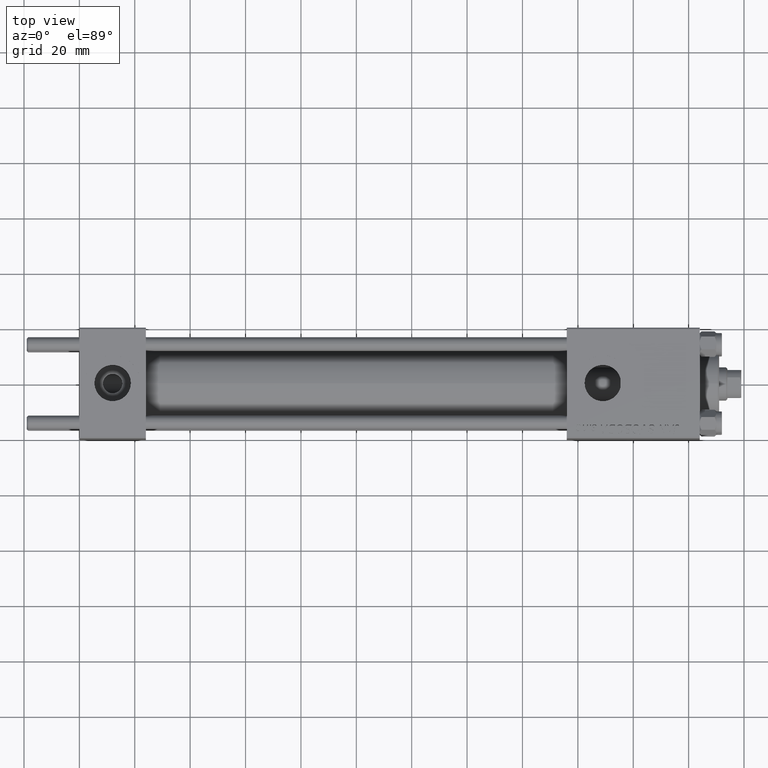
[diagram: clean part render]
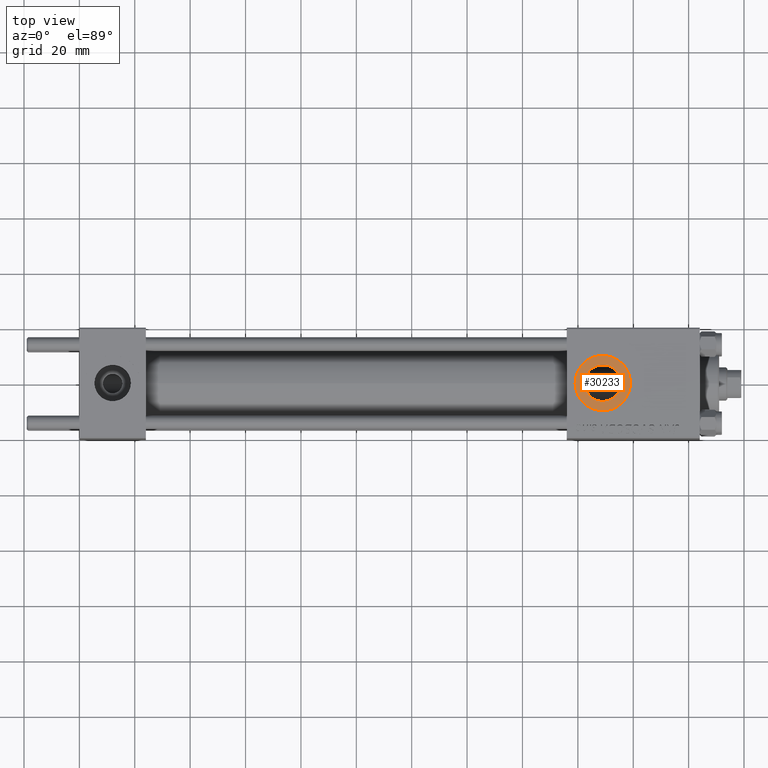
[diagram: same view with one face highlighted and labeled with its STEP entity id]
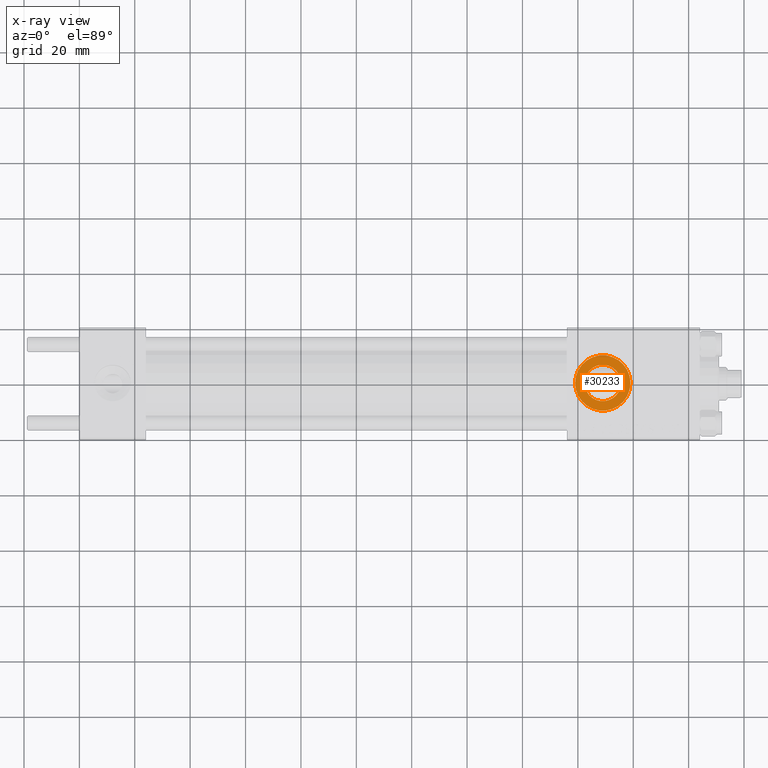
[diagram: x-ray of the same camera — body ghosted, the highlighted face saturated]
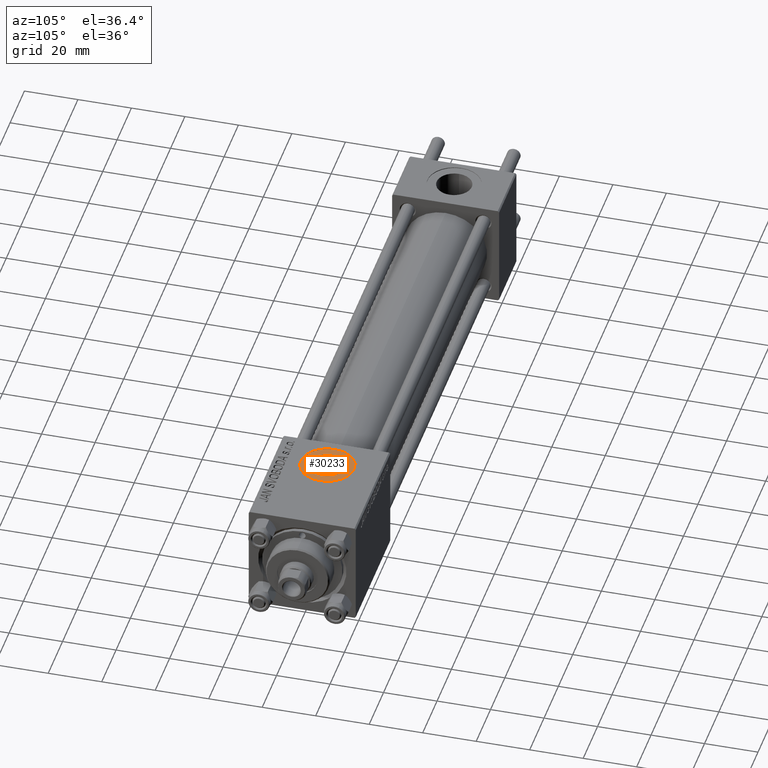
[diagram: same view with one face highlighted and labeled with its STEP entity id]
A machine part, top view. The second image highlights one B-rep face of the part: STEP entity #30233.
The next image is the same camera in x-ray: the body ghosted, the highlighted face saturated — about 0% of this face is hidden behind the body in this view.
A second angle (auxiliary view) of the same face is appended — the face is thin or edge-on in the first view.
In plain terms, the highlighted planar face has unit normal (0, 0, 1).
Its self-contained STEP definition (entity closure, byte-faithful):
#477 = DIRECTION ( 'NONE',  ( -0.000000000000000000, -0.000000000000000000, -1.000000000000000000 ) ) ;
#4116 = VERTEX_POINT ( 'NONE', #8311 ) ;
#6500 = CIRCLE ( 'NONE', #46019, 6.580000000000002736 ) ;
#8161 = CIRCLE ( 'NONE', #37971, 6.580000000000002736 ) ;
#8311 = CARTESIAN_POINT ( 'NONE',  ( 182.4199999999999875, -1.734723475976806897E-15, 19.80000000000000071 ) ) ;
#10859 = ORIENTED_EDGE ( 'NONE', *, *, #46831, .T. ) ;
#12625 = CARTESIAN_POINT ( 'NONE',  ( 189.0000000000000000, -1.734723475976806897E-15, 19.80000000000000071 ) ) ;
#12645 = CARTESIAN_POINT ( 'NONE',  ( 189.0000000000000000, -1.734723475976806897E-15, 19.80000000000000071 ) ) ;
#13983 = EDGE_CURVE ( 'NONE', #20939, #25242, #26460, .T. ) ;
#15894 = DIRECTION ( 'NONE',  ( 1.000000000000000000, 0.000000000000000000, 0.000000000000000000 ) ) ;
#17599 = DIRECTION ( 'NONE',  ( 1.000000000000000000, 0.000000000000000000, 0.000000000000000000 ) ) ;
#18003 = CIRCLE ( 'NONE', #27680, 10.00000000000000888 ) ;
#20698 = DIRECTION ( 'NONE',  ( 0.000000000000000000, 0.000000000000000000, 1.000000000000000000 ) ) ;
#20939 = VERTEX_POINT ( 'NONE', #40007 ) ;
#21940 = ORIENTED_EDGE ( 'NONE', *, *, #38429, .T. ) ;
#24163 = EDGE_LOOP ( 'NONE', ( #21940, #37128 ) ) ;
#24202 = PLANE ( 'NONE',  #38893 ) ;
#24977 = EDGE_CURVE ( 'NONE', #30646, #4116, #6500, .T. ) ;
#25242 = VERTEX_POINT ( 'NONE', #26671 ) ;
#26460 = CIRCLE ( 'NONE', #35319, 10.00000000000000888 ) ;
#26671 = CARTESIAN_POINT ( 'NONE',  ( 179.0000000000000000, -5.100766768294525560E-16, 19.80000000000000071 ) ) ;
#27680 = AXIS2_PLACEMENT_3D ( 'NONE', #47898, #28675, #44106 ) ;
#27740 = DIRECTION ( 'NONE',  ( 0.000000000000000000, 0.000000000000000000, 1.000000000000000000 ) ) ;
#28675 = DIRECTION ( 'NONE',  ( 0.000000000000000000, 0.000000000000000000, 1.000000000000000000 ) ) ;
#30233 = ADVANCED_FACE ( 'NONE', ( #35548, #35299 ), #24202, .T. ) ;
#30646 = VERTEX_POINT ( 'NONE', #32865 ) ;
#32241 = ORIENTED_EDGE ( 'NONE', *, *, #13983, .T. ) ;
#32865 = CARTESIAN_POINT ( 'NONE',  ( 195.5800000000000125, -9.289058821378450943E-16, 19.80000000000000071 ) ) ;
#33213 = CARTESIAN_POINT ( 'NONE',  ( 189.0000000000000000, -1.734723475976806897E-15, 19.80000000000000071 ) ) ;
#35299 = FACE_OUTER_BOUND ( 'NONE', #48031, .T. ) ;
#35319 = AXIS2_PLACEMENT_3D ( 'NONE', #12645, #20698, #39610 ) ;
#35548 = FACE_BOUND ( 'NONE', #24163, .T. ) ;
#36750 = DIRECTION ( 'NONE',  ( -0.000000000000000000, -0.000000000000000000, -1.000000000000000000 ) ) ;
#37128 = ORIENTED_EDGE ( 'NONE', *, *, #24977, .T. ) ;
#37971 = AXIS2_PLACEMENT_3D ( 'NONE', #33213, #36750, #17599 ) ;
#38429 = EDGE_CURVE ( 'NONE', #4116, #30646, #8161, .T. ) ;
#38893 = AXIS2_PLACEMENT_3D ( 'NONE', #12625, #27740, #43165 ) ;
#39610 = DIRECTION ( 'NONE',  ( 1.000000000000000000, 0.000000000000000000, 0.000000000000000000 ) ) ;
#40007 = CARTESIAN_POINT ( 'NONE',  ( 199.0000000000000000, -1.734723475976806897E-15, 19.80000000000000071 ) ) ;
#43165 = DIRECTION ( 'NONE',  ( 1.000000000000000000, 0.000000000000000000, -0.000000000000000000 ) ) ;
#43406 = CARTESIAN_POINT ( 'NONE',  ( 189.0000000000000000, -1.734723475976806897E-15, 19.80000000000000071 ) ) ;
#44106 = DIRECTION ( 'NONE',  ( 1.000000000000000000, 0.000000000000000000, 0.000000000000000000 ) ) ;
#46019 = AXIS2_PLACEMENT_3D ( 'NONE', #43406, #477, #15894 ) ;
#46831 = EDGE_CURVE ( 'NONE', #25242, #20939, #18003, .T. ) ;
#47898 = CARTESIAN_POINT ( 'NONE',  ( 189.0000000000000000, -1.734723475976806897E-15, 19.80000000000000071 ) ) ;
#48031 = EDGE_LOOP ( 'NONE', ( #32241, #10859 ) ) ;